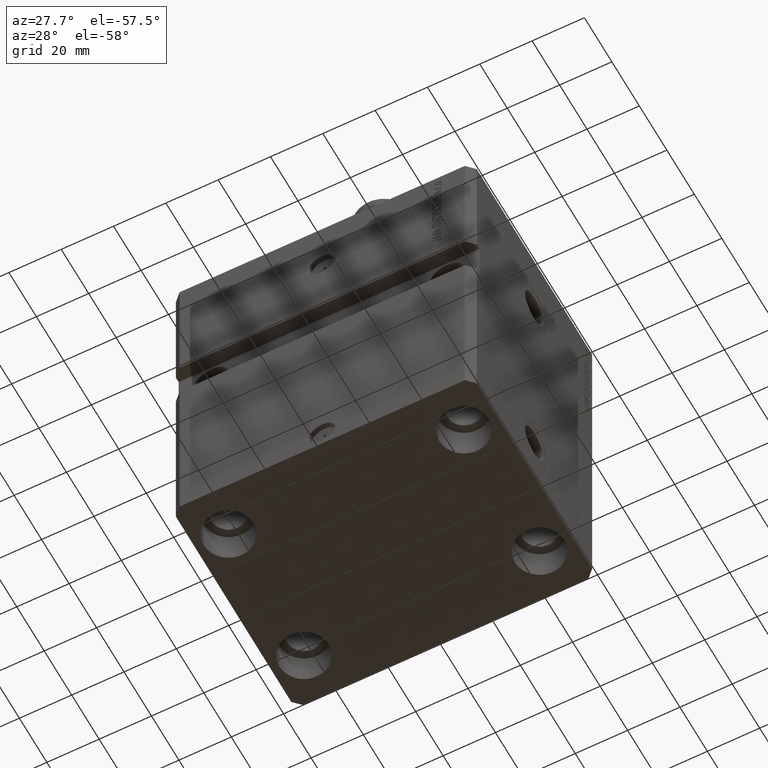
[diagram: clean part render]
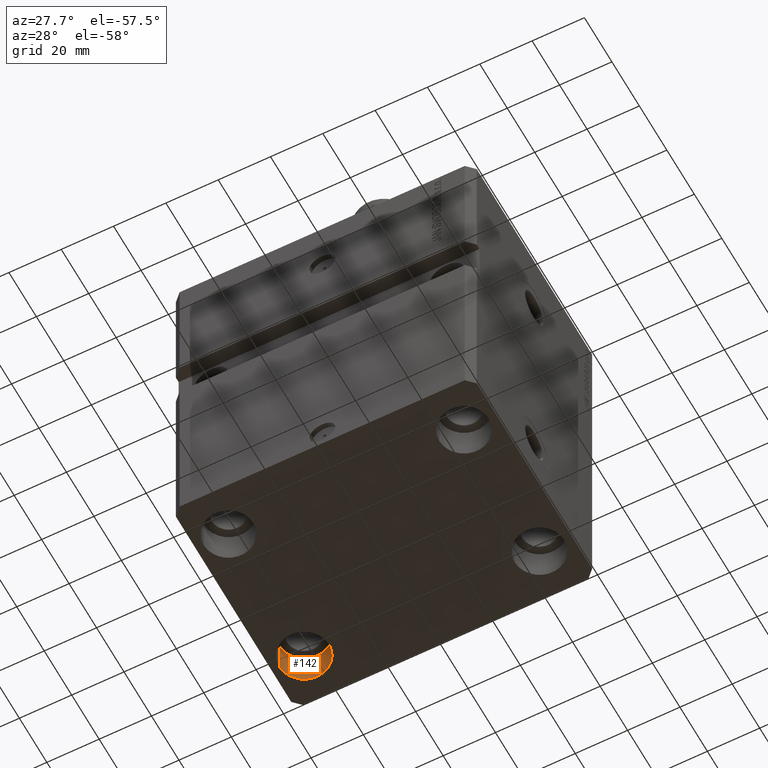
[diagram: same view with one face highlighted and labeled with its STEP entity id]
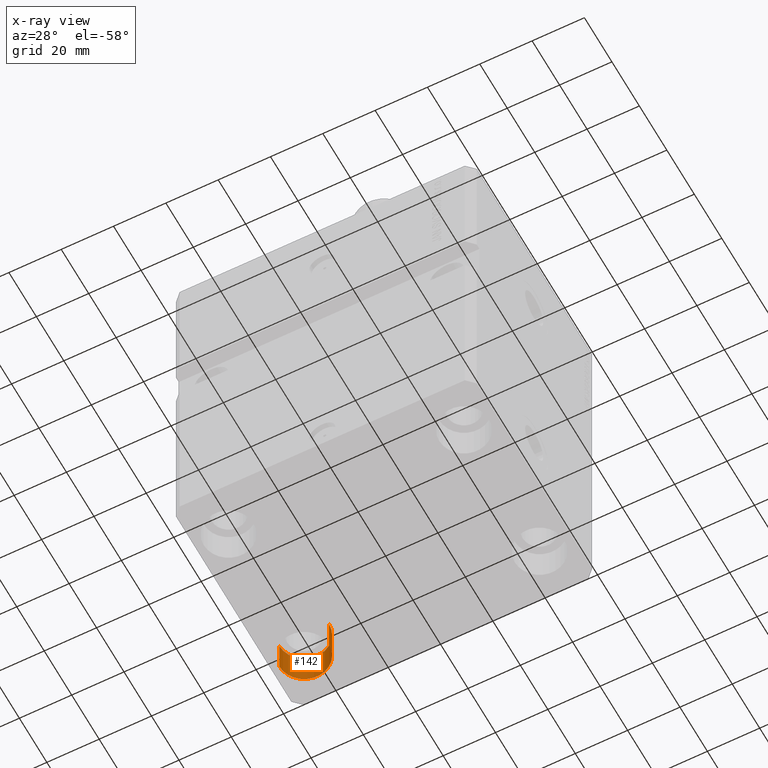
[diagram: x-ray of the same camera — body ghosted, the highlighted face saturated]
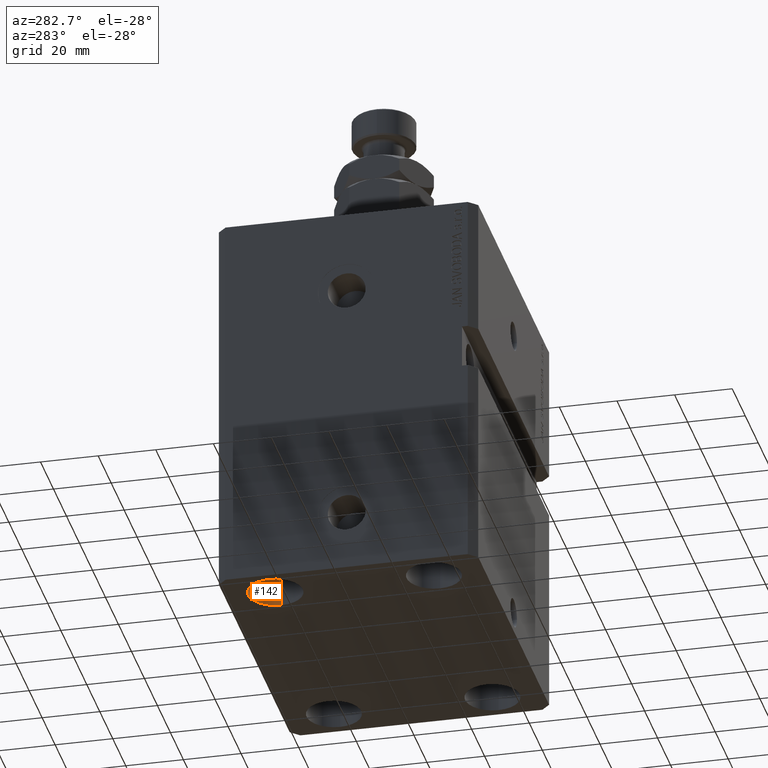
[diagram: same view with one face highlighted and labeled with its STEP entity id]
A machine part, auxiliary view. The second image highlights one B-rep face of the part: STEP entity #142.
The next image is the same camera in x-ray: the body ghosted, the highlighted face saturated — about 0% of this face is hidden behind the body in this view.
A second angle (auxiliary view) of the same face is appended — the face is thin or edge-on in the first view.
In plain terms, the highlighted cylindrical surface (edge-blend (fillet) strip) has radius 9.5 mm, axis along (-0, -0, -1).
Its self-contained STEP definition (entity closure, byte-faithful):
#142 = ADVANCED_FACE ( 'NONE', ( #27600 ), #34916, .F. ) ;
#750 = LINE ( 'NONE', #8303, #32364 ) ;
#1966 = CARTESIAN_POINT ( 'NONE',  ( -35.50000000000000000, 27.50000000000000355, -122.0000000000000142 ) ) ;
#3982 = EDGE_CURVE ( 'NONE', #38370, #45108, #36450, .T. ) ;
#4714 = ORIENTED_EDGE ( 'NONE', *, *, #5119, .F. ) ;
#5119 = EDGE_CURVE ( 'NONE', #45108, #10541, #27476, .T. ) ;
#5733 = EDGE_CURVE ( 'NONE', #38370, #34876, #40716, .T. ) ;
#7247 = AXIS2_PLACEMENT_3D ( 'NONE', #43277, #36941, #21414 ) ;
#8303 = CARTESIAN_POINT ( 'NONE',  ( -54.50000000000000000, 27.50000000000000355, -122.0000000000000142 ) ) ;
#8357 = CARTESIAN_POINT ( 'NONE',  ( -54.50000000000000000, 27.50000000000000355, -122.0000000000000142 ) ) ;
#9446 = CARTESIAN_POINT ( 'NONE',  ( -35.50000000000000000, 27.50000000000000355, -122.0000000000000142 ) ) ;
#9553 = VECTOR ( 'NONE', #27296, 1000.000000000000000 ) ;
#10541 = VERTEX_POINT ( 'NONE', #28145 ) ;
#14320 = AXIS2_PLACEMENT_3D ( 'NONE', #31226, #15465, #19615 ) ;
#14924 = AXIS2_PLACEMENT_3D ( 'NONE', #27842, #42201, #42443 ) ;
#15465 = DIRECTION ( 'NONE',  ( -0.000000000000000000, -0.000000000000000000, 1.000000000000000000 ) ) ;
#16295 = EDGE_CURVE ( 'NONE', #34876, #10541, #750, .T. ) ;
#19355 = ORIENTED_EDGE ( 'NONE', *, *, #5733, .T. ) ;
#19615 = DIRECTION ( 'NONE',  ( 1.000000000000000000, 0.000000000000000000, 0.000000000000000000 ) ) ;
#21414 = DIRECTION ( 'NONE',  ( 1.000000000000000000, 0.000000000000000000, 0.000000000000000000 ) ) ;
#23171 = DIRECTION ( 'NONE',  ( -0.000000000000000000, -0.000000000000000000, -1.000000000000000000 ) ) ;
#27296 = DIRECTION ( 'NONE',  ( -0.000000000000000000, -0.000000000000000000, -1.000000000000000000 ) ) ;
#27476 = CIRCLE ( 'NONE', #7247, 9.500000000000001776 ) ;
#27600 = FACE_OUTER_BOUND ( 'NONE', #46368, .T. ) ;
#27842 = CARTESIAN_POINT ( 'NONE',  ( -45.00000000000000000, 27.50000000000000355, -122.0000000000000142 ) ) ;
#28145 = CARTESIAN_POINT ( 'NONE',  ( -54.50000000000000000, 27.50000000000000355, -135.0000000000000000 ) ) ;
#31226 = CARTESIAN_POINT ( 'NONE',  ( -45.00000000000000000, 27.50000000000000355, -122.0000000000000142 ) ) ;
#32364 = VECTOR ( 'NONE', #23171, 1000.000000000000000 ) ;
#34876 = VERTEX_POINT ( 'NONE', #8357 ) ;
#34916 = CYLINDRICAL_SURFACE ( 'NONE', #14924, 9.500000000000001776 ) ;
#36450 = LINE ( 'NONE', #1966, #9553 ) ;
#36941 = DIRECTION ( 'NONE',  ( -0.000000000000000000, -0.000000000000000000, 1.000000000000000000 ) ) ;
#38370 = VERTEX_POINT ( 'NONE', #9446 ) ;
#40716 = CIRCLE ( 'NONE', #14320, 9.500000000000001776 ) ;
#42201 = DIRECTION ( 'NONE',  ( -0.000000000000000000, -0.000000000000000000, -1.000000000000000000 ) ) ;
#42443 = DIRECTION ( 'NONE',  ( -1.000000000000000000, 0.000000000000000000, 0.000000000000000000 ) ) ;
#42807 = ORIENTED_EDGE ( 'NONE', *, *, #3982, .F. ) ;
#43277 = CARTESIAN_POINT ( 'NONE',  ( -45.00000000000000000, 27.50000000000000355, -135.0000000000000000 ) ) ;
#44750 = ORIENTED_EDGE ( 'NONE', *, *, #16295, .T. ) ;
#45108 = VERTEX_POINT ( 'NONE', #45175 ) ;
#45175 = CARTESIAN_POINT ( 'NONE',  ( -35.50000000000000000, 27.50000000000000355, -135.0000000000000000 ) ) ;
#46368 = EDGE_LOOP ( 'NONE', ( #42807, #19355, #44750, #4714 ) ) ;